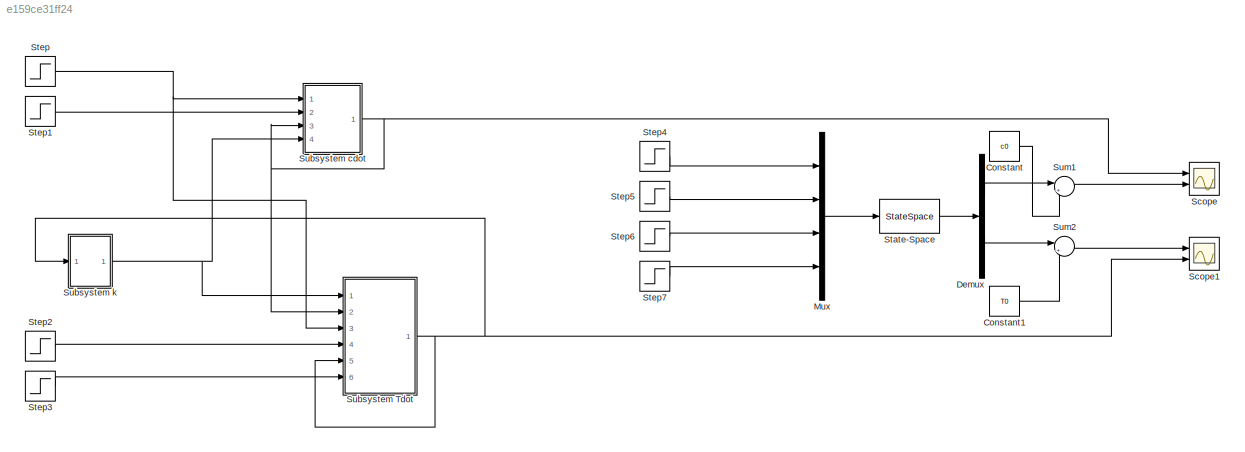
MODEL slx_e159ce31ff24
KIND model
CONFIG AbsTol = auto
CONFIG EnableMultiTasking = off
CONFIG FixedStep = auto
CONFIG MaxStep = auto
CONFIG MinStep = auto
CONFIG RelTol = 1e-3
CONFIG SampleTimeConstraint = Unconstrained
CONFIG SolverName = VariableStepAuto
CONFIG StartTime = 0.0
CONFIG StopTime = 30
BLOCK [Constant] Constant
  Value = c0
BLOCK [Constant] Constant1
  Value = T0
BLOCK [Demux] Demux
  Outputs = 2
  Ports = [1, 2]
BLOCK [Mux] Mux
  DisplayOption = bar
  Ports = [4, 1]
BLOCK [Scope] Scope
  Floating = off
  NumInputPorts = 2
  Ports = [2]
  ScopeSpecificationString = Simulink.scopes.TimeScopeBlockCfg('CurrentConfiguration', extmgr.ConfigurationSet(extmgr.Configuration('Core','General UI',true),extmgr.Configuration('Core','Source UI',true),extmgr.Configuration('Sources','WiredSimulink',true),extmgr.Configuration('Visuals','Time Domain',true,'SerializedDisplays',{struct('MinYLimReal','5.14252','MaxYLimReal','8.4153','YLabelReal','','MinYLimMag','5.14252','MaxYLi...<+1364ch>
BLOCK [Scope] Scope1
  Floating = off
  NumInputPorts = 2
  Ports = [2]
  ScopeSpecificationString = Simulink.scopes.TimeScopeBlockCfg('CurrentConfiguration', extmgr.ConfigurationSet(extmgr.Configuration('Core','General UI',true),extmgr.Configuration('Core','Source UI',true),extmgr.Configuration('Sources','WiredSimulink',true,'DataLoggingVariableName','ScopeData1'),extmgr.Configuration('Visuals','Time Domain',true,'SerializedDisplays',{struct('MinYLimReal','326.51482','MaxYLimReal','340.8728','YL...<+1419ch>
BLOCK [StateSpace] State-Space
  A = A
  B = B
  C = C
  D = D
  InitialCondition = 0
  Ports = [1, 1]
BLOCK [Step] Step
  After = 1.5*q
  Before = 1.5*q
  SampleTime = 0
  Time = 0
BLOCK [Step] Step1
  After = ci
  Before = ci
  SampleTime = 0
  Time = 0
BLOCK [Step] Step2
  After = Ti
  Before = Ti
  SampleTime = 0
  Time = 0
BLOCK [Step] Step3
  After = Tri
  Before = Tri
  SampleTime = 0
  Time = 0
BLOCK [Step] Step4
  After = 0.5*q
  Before = 0.5*q
  SampleTime = 0
  Time = 0
BLOCK [Step] Step5
  After = 0
  SampleTime = 0
  Time = 0
BLOCK [Step] Step6
  After = 0
  SampleTime = 0
  Time = 0
BLOCK [Step] Step7
  After = 0
  SampleTime = 0
  Time = 0
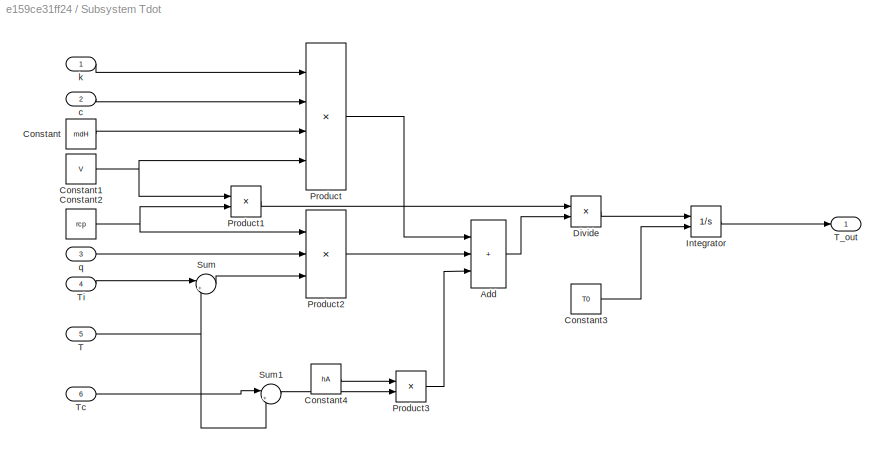
BLOCK [SubSystem] Subsystem Tdot
  Ports = [6, 1]
  RequestExecContextInheritance = off
BLOCK [Sum] Subsystem Tdot/Add
  IconShape = rectangular
  Inputs = +++
  Ports = [3, 1]
BLOCK [Constant] Subsystem Tdot/Constant
  Value = mdH
BLOCK [Constant] Subsystem Tdot/Constant1
  Value = V
BLOCK [Constant] Subsystem Tdot/Constant2
  Value = rcp
BLOCK [Constant] Subsystem Tdot/Constant3
  Value = T0
BLOCK [Constant] Subsystem Tdot/Constant4
  Value = hA
BLOCK [Product] Subsystem Tdot/Divide
  Inputs = /*
  Ports = [2, 1]
BLOCK [Integrator] Subsystem Tdot/Integrator
  InitialConditionSource = external
  Ports = [2, 1]
BLOCK [Product] Subsystem Tdot/Product
  Inputs = 4
  Ports = [4, 1]
BLOCK [Product] Subsystem Tdot/Product1
  Ports = [2, 1]
BLOCK [Product] Subsystem Tdot/Product2
  Inputs = 3
  Ports = [3, 1]
BLOCK [Product] Subsystem Tdot/Product3
  Ports = [2, 1]
BLOCK [Sum] Subsystem Tdot/Sum
  Inputs = |+-
  Ports = [2, 1]
BLOCK [Sum] Subsystem Tdot/Sum1
  Inputs = |+-
  NameLocation = top
  Ports = [2, 1]
BLOCK [Inport] Subsystem Tdot/T
  Port = 5
BLOCK [Outport] Subsystem Tdot/T_out
BLOCK [Inport] Subsystem Tdot/Tc
  Port = 6
BLOCK [Inport] Subsystem Tdot/Ti
  Port = 4
BLOCK [Inport] Subsystem Tdot/c
  Port = 2
BLOCK [Inport] Subsystem Tdot/k
BLOCK [Inport] Subsystem Tdot/q
  Port = 3
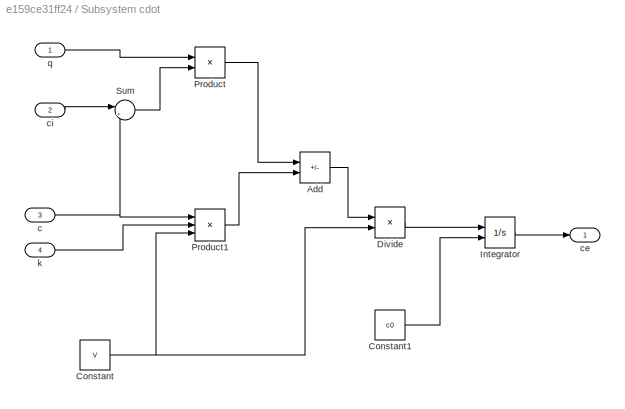
BLOCK [SubSystem] Subsystem cdot
  Ports = [4, 1]
  RequestExecContextInheritance = off
BLOCK [Sum] Subsystem cdot/Add
  IconShape = rectangular
  Inputs = +-
  Ports = [2, 1]
BLOCK [Constant] Subsystem cdot/Constant
  Value = V
BLOCK [Constant] Subsystem cdot/Constant1
  Value = c0
BLOCK [Product] Subsystem cdot/Divide
  Inputs = */
  Ports = [2, 1]
BLOCK [Integrator] Subsystem cdot/Integrator
  InitialConditionSource = external
  Ports = [2, 1]
BLOCK [Product] Subsystem cdot/Product
  Ports = [2, 1]
BLOCK [Product] Subsystem cdot/Product1
  Inputs = 3
  Ports = [3, 1]
BLOCK [Sum] Subsystem cdot/Sum
  Inputs = |+-
  Ports = [2, 1]
BLOCK [Inport] Subsystem cdot/c
  Port = 3
BLOCK [Outport] Subsystem cdot/ce
BLOCK [Inport] Subsystem cdot/ci
  Port = 2
BLOCK [Inport] Subsystem cdot/k
  Port = 4
BLOCK [Inport] Subsystem cdot/q
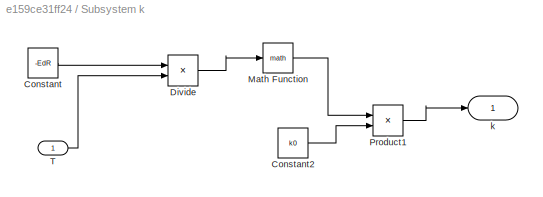
BLOCK [SubSystem] Subsystem k
  Ports = [1, 1]
  RequestExecContextInheritance = off
BLOCK [Constant] Subsystem k/Constant
  Value = -EdR
BLOCK [Constant] Subsystem k/Constant2
  Value = k0
BLOCK [Product] Subsystem k/Divide
  Inputs = */
  Ports = [2, 1]
BLOCK [Math] Subsystem k/Math Function
  Ports = [1, 1]
BLOCK [Product] Subsystem k/Product1
  Ports = [2, 1]
BLOCK [Inport] Subsystem k/T
BLOCK [Outport] Subsystem k/k
BLOCK [Sum] Sum1
  Inputs = |++
  NameLocation = top
  Ports = [2, 1]
BLOCK [Sum] Sum2
  Inputs = |++
  Ports = [2, 1]
LINE Constant1:1 -> Sum2:2
LINE Constant:1 -> Sum1:2
LINE Demux:1 -> Sum1:1
LINE Demux:2 -> Sum2:1
LINE Mux:1 -> State-Space:1
LINE State-Space:1 -> Demux:1
LINE Step1:1 -> Subsystem cdot:2
LINE Step2:1 -> Subsystem Tdot:4
LINE Step3:1 -> Subsystem Tdot:6
LINE Step4:1 -> Mux:1
LINE Step5:1 -> Mux:2
LINE Step6:1 -> Mux:3
LINE Step7:1 -> Mux:4
NET Step:1 -> Subsystem Tdot:3, Subsystem cdot:1
LINE Subsystem Tdot/Add:1 -> Subsystem Tdot/Divide:2
NET Subsystem Tdot/Constant1:1 -> Subsystem Tdot/Product1:1, Subsystem Tdot/Product:4
NET Subsystem Tdot/Constant2:1 -> Subsystem Tdot/Product1:2, Subsystem Tdot/Product2:1
LINE Subsystem Tdot/Constant3:1 -> Subsystem Tdot/Integrator:2
LINE Subsystem Tdot/Constant4:1 -> Subsystem Tdot/Product3:1
LINE Subsystem Tdot/Constant:1 -> Subsystem Tdot/Product:3
LINE Subsystem Tdot/Divide:1 -> Subsystem Tdot/Integrator:1
LINE Subsystem Tdot/Integrator:1 -> Subsystem Tdot/T_out:1
LINE Subsystem Tdot/Product1:1 -> Subsystem Tdot/Divide:1
LINE Subsystem Tdot/Product2:1 -> Subsystem Tdot/Add:2
LINE Subsystem Tdot/Product3:1 -> Subsystem Tdot/Add:3
LINE Subsystem Tdot/Product:1 -> Subsystem Tdot/Add:1
LINE Subsystem Tdot/Sum1:1 -> Subsystem Tdot/Product3:2
LINE Subsystem Tdot/Sum:1 -> Subsystem Tdot/Product2:3
NET Subsystem Tdot/T:1 -> Subsystem Tdot/Sum1:2, Subsystem Tdot/Sum:2
LINE Subsystem Tdot/Tc:1 -> Subsystem Tdot/Sum1:1
LINE Subsystem Tdot/Ti:1 -> Subsystem Tdot/Sum:1
LINE Subsystem Tdot/c:1 -> Subsystem Tdot/Product:2
LINE Subsystem Tdot/k:1 -> Subsystem Tdot/Product:1
LINE Subsystem Tdot/q:1 -> Subsystem Tdot/Product2:2
NET Subsystem Tdot:1 -> Scope1:2, Subsystem Tdot:5, Subsystem k:1
LINE Subsystem cdot/Add:1 -> Subsystem cdot/Divide:1
LINE Subsystem cdot/Constant1:1 -> Subsystem cdot/Integrator:2
NET Subsystem cdot/Constant:1 -> Subsystem cdot/Divide:2, Subsystem cdot/Product1:3
LINE Subsystem cdot/Divide:1 -> Subsystem cdot/Integrator:1
LINE Subsystem cdot/Integrator:1 -> Subsystem cdot/ce:1
LINE Subsystem cdot/Product1:1 -> Subsystem cdot/Add:2
LINE Subsystem cdot/Product:1 -> Subsystem cdot/Add:1
LINE Subsystem cdot/Sum:1 -> Subsystem cdot/Product:2
NET Subsystem cdot/c:1 -> Subsystem cdot/Product1:1, Subsystem cdot/Sum:2
LINE Subsystem cdot/ci:1 -> Subsystem cdot/Sum:1
LINE Subsystem cdot/k:1 -> Subsystem cdot/Product1:2
LINE Subsystem cdot/q:1 -> Subsystem cdot/Product:1
NET Subsystem cdot:1 -> Scope:1, Subsystem Tdot:2, Subsystem cdot:3
LINE Subsystem k/Constant2:1 -> Subsystem k/Product1:2
LINE Subsystem k/Constant:1 -> Subsystem k/Divide:1
LINE Subsystem k/Divide:1 -> Subsystem k/Math Function:1
LINE Subsystem k/Math Function:1 -> Subsystem k/Product1:1
LINE Subsystem k/Product1:1 -> Subsystem k/k:1
LINE Subsystem k/T:1 -> Subsystem k/Divide:2
NET Subsystem k:1 -> Subsystem Tdot:1, Subsystem cdot:4
LINE Sum1:1 -> Scope:2
LINE Sum2:1 -> Scope1:1
note: NET lines group one-source signal fan-out (src -> all destinations, sorted); 1:1 wires keep LINE
